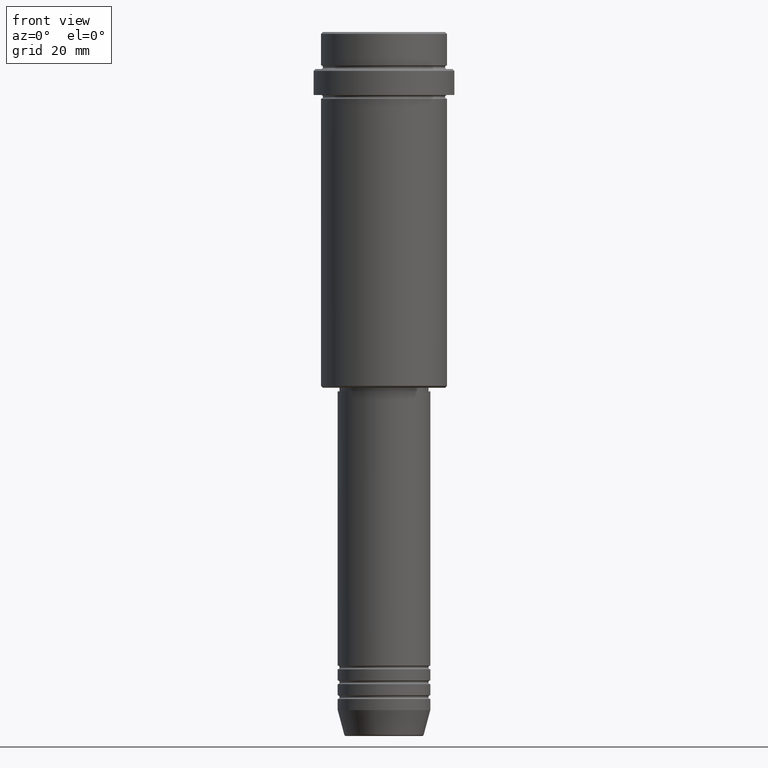
[diagram: clean part render]
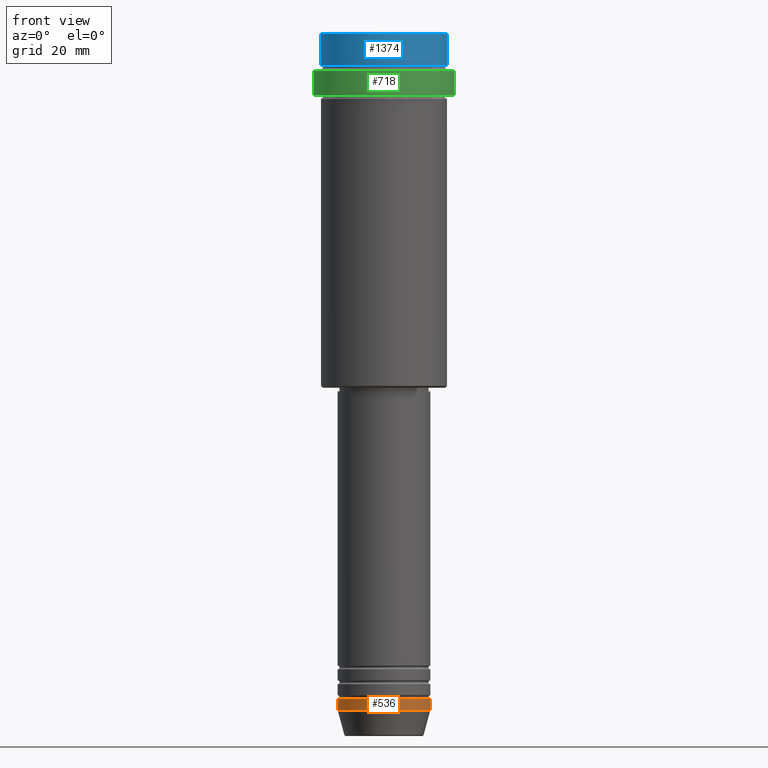
[diagram: same view with three faces highlighted in distinct colors, each labeled with its STEP entity id]
A machine part, front view with three faces highlighted in distinct colors.
Their STEP definitions:

[orange] entity #536 — the highlighted cylindrical surface (partial cylindrical patch) has radius 12.5 mm, axis along (-0, -0, 1).
#16 = DIRECTION ( 'NONE',  ( -0.000000000000000000, -0.000000000000000000, 1.000000000000000000 ) ) ;
#23 = CARTESIAN_POINT ( 'NONE',  ( 0.000000000000000000, 0.000000000000000000, -180.0000000000000000 ) ) ;
#49 = CARTESIAN_POINT ( 'NONE',  ( 0.000000000000000000, 0.000000000000000000, -183.0000000000000000 ) ) ;
#98 = CARTESIAN_POINT ( 'NONE',  ( -12.50000000000000000, 1.530808498934191521E-15, -180.0000000000000000 ) ) ;
#129 = CARTESIAN_POINT ( 'NONE',  ( 12.50000000000000000, 0.000000000000000000, -180.0000000000000000 ) ) ;
#139 = EDGE_CURVE ( 'NONE', #1248, #659, #251, .T. ) ;
#154 = DIRECTION ( 'NONE',  ( 1.000000000000000000, 0.000000000000000000, 0.000000000000000000 ) ) ;
#159 = VERTEX_POINT ( 'NONE', #129 ) ;
#164 = EDGE_CURVE ( 'NONE', #659, #159, #1139, .T. ) ;
#245 = DIRECTION ( 'NONE',  ( 1.000000000000000000, 0.000000000000000000, 0.000000000000000000 ) ) ;
#251 = LINE ( 'NONE', #705, #903 ) ;
#341 = AXIS2_PLACEMENT_3D ( 'NONE', #471, #1342, #1333 ) ;
#399 = ORIENTED_EDGE ( 'NONE', *, *, #164, .F. ) ;
#471 = CARTESIAN_POINT ( 'NONE',  ( 0.000000000000000000, 0.000000000000000000, 0.000000000000000000 ) ) ;
#507 = AXIS2_PLACEMENT_3D ( 'NONE', #23, #1239, #245 ) ;
#532 = ORIENTED_EDGE ( 'NONE', *, *, #1183, .T. ) ;
#536 = ADVANCED_FACE ( 'NONE', ( #1313 ), #1325, .T. ) ;
#612 = VERTEX_POINT ( 'NONE', #741 ) ;
#659 = VERTEX_POINT ( 'NONE', #98 ) ;
#681 = CIRCLE ( 'NONE', #1056, 12.50000000000000000 ) ;
#705 = CARTESIAN_POINT ( 'NONE',  ( -12.50000000000000000, 1.530808498934191521E-15, 0.000000000000000000 ) ) ;
#727 = VECTOR ( 'NONE', #1071, 1000.000000000000000 ) ;
#736 = ORIENTED_EDGE ( 'NONE', *, *, #890, .T. ) ;
#741 = CARTESIAN_POINT ( 'NONE',  ( 12.50000000000000000, 0.000000000000000000, -183.0000000000000000 ) ) ;
#798 = DIRECTION ( 'NONE',  ( -0.000000000000000000, -0.000000000000000000, 1.000000000000000000 ) ) ;
#890 = EDGE_CURVE ( 'NONE', #612, #159, #1178, .T. ) ;
#903 = VECTOR ( 'NONE', #16, 1000.000000000000000 ) ;
#1035 = CARTESIAN_POINT ( 'NONE',  ( -12.50000000000000000, 1.530808498934191521E-15, -183.0000000000000000 ) ) ;
#1056 = AXIS2_PLACEMENT_3D ( 'NONE', #49, #798, #154 ) ;
#1071 = DIRECTION ( 'NONE',  ( -0.000000000000000000, -0.000000000000000000, 1.000000000000000000 ) ) ;
#1131 = ORIENTED_EDGE ( 'NONE', *, *, #139, .F. ) ;
#1139 = CIRCLE ( 'NONE', #507, 12.50000000000000000 ) ;
#1178 = LINE ( 'NONE', #1277, #727 ) ;
#1183 = EDGE_CURVE ( 'NONE', #1248, #612, #681, .T. ) ;
#1239 = DIRECTION ( 'NONE',  ( -0.000000000000000000, -0.000000000000000000, 1.000000000000000000 ) ) ;
#1248 = VERTEX_POINT ( 'NONE', #1035 ) ;
#1265 = EDGE_LOOP ( 'NONE', ( #1131, #532, #736, #399 ) ) ;
#1277 = CARTESIAN_POINT ( 'NONE',  ( 12.50000000000000000, 0.000000000000000000, 0.000000000000000000 ) ) ;
#1313 = FACE_OUTER_BOUND ( 'NONE', #1265, .T. ) ;
#1325 = CYLINDRICAL_SURFACE ( 'NONE', #341, 12.50000000000000000 ) ;
#1333 = DIRECTION ( 'NONE',  ( 1.000000000000000000, 0.000000000000000000, 0.000000000000000000 ) ) ;
#1342 = DIRECTION ( 'NONE',  ( -0.000000000000000000, -0.000000000000000000, 1.000000000000000000 ) ) ;

[blue] entity #1374 — the highlighted cylindrical surface (partial cylindrical patch) has radius 17 mm, axis along (-0, -0, 1).
#70 = DIRECTION ( 'NONE',  ( 1.000000000000000000, 0.000000000000000000, 0.000000000000000000 ) ) ;
#90 = DIRECTION ( 'NONE',  ( 1.000000000000000000, 0.000000000000000000, 0.000000000000000000 ) ) ;
#125 = EDGE_LOOP ( 'NONE', ( #1355, #920, #761, #955 ) ) ;
#188 = CARTESIAN_POINT ( 'NONE',  ( -16.99999999999998934, 2.081899558550499491E-15, 0.000000000000000000 ) ) ;
#278 = DIRECTION ( 'NONE',  ( 1.000000000000000000, 0.000000000000000000, 0.000000000000000000 ) ) ;
#396 = DIRECTION ( 'NONE',  ( -0.000000000000000000, -0.000000000000000000, 1.000000000000000000 ) ) ;
#403 = CYLINDRICAL_SURFACE ( 'NONE', #1363, 16.99999999999998934 ) ;
#445 = EDGE_CURVE ( 'NONE', #490, #603, #675, .T. ) ;
#490 = VERTEX_POINT ( 'NONE', #775 ) ;
#524 = DIRECTION ( 'NONE',  ( -0.000000000000000000, -0.000000000000000000, 1.000000000000000000 ) ) ;
#537 = CARTESIAN_POINT ( 'NONE',  ( -16.99999999999997868, 2.081899558550498702E-15, -8.999999999999998224 ) ) ;
#600 = AXIS2_PLACEMENT_3D ( 'NONE', #825, #1261, #278 ) ;
#603 = VERTEX_POINT ( 'NONE', #1322 ) ;
#625 = VERTEX_POINT ( 'NONE', #537 ) ;
#640 = CARTESIAN_POINT ( 'NONE',  ( 0.000000000000000000, 0.000000000000000000, 0.000000000000000000 ) ) ;
#675 = CIRCLE ( 'NONE', #600, 16.99999999999998934 ) ;
#688 = VERTEX_POINT ( 'NONE', #779 ) ;
#699 = DIRECTION ( 'NONE',  ( -0.000000000000000000, -0.000000000000000000, 1.000000000000000000 ) ) ;
#750 = CIRCLE ( 'NONE', #792, 16.99999999999997868 ) ;
#761 = ORIENTED_EDGE ( 'NONE', *, *, #1189, .T. ) ;
#775 = CARTESIAN_POINT ( 'NONE',  ( 16.99999999999998934, 0.000000000000000000, -0.4999999999999865663 ) ) ;
#779 = CARTESIAN_POINT ( 'NONE',  ( 16.99999999999997868, 0.000000000000000000, -8.999999999999998224 ) ) ;
#792 = AXIS2_PLACEMENT_3D ( 'NONE', #1188, #1400, #70 ) ;
#825 = CARTESIAN_POINT ( 'NONE',  ( 0.000000000000000000, 0.000000000000000000, -0.4999999999999865663 ) ) ;
#920 = ORIENTED_EDGE ( 'NONE', *, *, #981, .T. ) ;
#952 = EDGE_CURVE ( 'NONE', #625, #603, #1067, .T. ) ;
#955 = ORIENTED_EDGE ( 'NONE', *, *, #445, .T. ) ;
#981 = EDGE_CURVE ( 'NONE', #625, #688, #750, .T. ) ;
#1041 = LINE ( 'NONE', #1154, #1100 ) ;
#1067 = LINE ( 'NONE', #188, #1312 ) ;
#1100 = VECTOR ( 'NONE', #699, 1000.000000000000000 ) ;
#1154 = CARTESIAN_POINT ( 'NONE',  ( 16.99999999999998934, 0.000000000000000000, 0.000000000000000000 ) ) ;
#1188 = CARTESIAN_POINT ( 'NONE',  ( 0.000000000000000000, 0.000000000000000000, -8.999999999999998224 ) ) ;
#1189 = EDGE_CURVE ( 'NONE', #688, #490, #1041, .T. ) ;
#1261 = DIRECTION ( 'NONE',  ( 0.000000000000000000, 0.000000000000000000, -1.000000000000000000 ) ) ;
#1312 = VECTOR ( 'NONE', #396, 1000.000000000000000 ) ;
#1322 = CARTESIAN_POINT ( 'NONE',  ( -16.99999999999998934, 2.081899558550499491E-15, -0.4999999999999865663 ) ) ;
#1355 = ORIENTED_EDGE ( 'NONE', *, *, #952, .F. ) ;
#1363 = AXIS2_PLACEMENT_3D ( 'NONE', #640, #524, #90 ) ;
#1374 = ADVANCED_FACE ( 'NONE', ( #1413 ), #403, .T. ) ;
#1400 = DIRECTION ( 'NONE',  ( -0.000000000000000000, -0.000000000000000000, 1.000000000000000000 ) ) ;
#1413 = FACE_OUTER_BOUND ( 'NONE', #125, .T. ) ;

[green] entity #718 — the highlighted cylindrical surface (partial cylindrical patch) has radius 19 mm, axis along (-0, -0, 1).
#15 = CARTESIAN_POINT ( 'NONE',  ( 0.000000000000000000, 0.000000000000000000, 0.000000000000000000 ) ) ;
#27 = CARTESIAN_POINT ( 'NONE',  ( 0.000000000000000000, 0.000000000000000000, -10.49999999999998934 ) ) ;
#60 = DIRECTION ( 'NONE',  ( -0.000000000000000000, -0.000000000000000000, 1.000000000000000000 ) ) ;
#104 = DIRECTION ( 'NONE',  ( 1.000000000000000000, 0.000000000000000000, 0.000000000000000000 ) ) ;
#134 = CARTESIAN_POINT ( 'NONE',  ( -18.99999999999997868, 2.326828918379968604E-15, 0.000000000000000000 ) ) ;
#227 = ORIENTED_EDGE ( 'NONE', *, *, #802, .T. ) ;
#240 = DIRECTION ( 'NONE',  ( -0.000000000000000000, -0.000000000000000000, 1.000000000000000000 ) ) ;
#288 = VERTEX_POINT ( 'NONE', #1338 ) ;
#412 = AXIS2_PLACEMENT_3D ( 'NONE', #1299, #670, #104 ) ;
#449 = DIRECTION ( 'NONE',  ( 1.000000000000000000, 0.000000000000000000, 0.000000000000000000 ) ) ;
#480 = EDGE_CURVE ( 'NONE', #895, #692, #691, .T. ) ;
#496 = ORIENTED_EDGE ( 'NONE', *, *, #480, .T. ) ;
#558 = FACE_OUTER_BOUND ( 'NONE', #1190, .T. ) ;
#578 = LINE ( 'NONE', #134, #1290 ) ;
#670 = DIRECTION ( 'NONE',  ( -0.000000000000000000, -0.000000000000000000, 1.000000000000000000 ) ) ;
#689 = DIRECTION ( 'NONE',  ( 1.000000000000000000, 0.000000000000000000, 0.000000000000000000 ) ) ;
#691 = LINE ( 'NONE', #1000, #974 ) ;
#692 = VERTEX_POINT ( 'NONE', #1321 ) ;
#718 = ADVANCED_FACE ( 'NONE', ( #558 ), #1008, .T. ) ;
#744 = CARTESIAN_POINT ( 'NONE',  ( 18.99999999999997868, 0.000000000000000000, -17.00000000000000000 ) ) ;
#759 = EDGE_CURVE ( 'NONE', #288, #902, #578, .T. ) ;
#776 = ORIENTED_EDGE ( 'NONE', *, *, #759, .F. ) ;
#780 = ORIENTED_EDGE ( 'NONE', *, *, #1060, .T. ) ;
#802 = EDGE_CURVE ( 'NONE', #692, #902, #815, .T. ) ;
#815 = CIRCLE ( 'NONE', #1118, 18.99999999999997868 ) ;
#895 = VERTEX_POINT ( 'NONE', #744 ) ;
#902 = VERTEX_POINT ( 'NONE', #1381 ) ;
#908 = DIRECTION ( 'NONE',  ( 0.000000000000000000, 0.000000000000000000, -1.000000000000000000 ) ) ;
#974 = VECTOR ( 'NONE', #240, 1000.000000000000000 ) ;
#990 = DIRECTION ( 'NONE',  ( -0.000000000000000000, -0.000000000000000000, 1.000000000000000000 ) ) ;
#1000 = CARTESIAN_POINT ( 'NONE',  ( 18.99999999999997868, 0.000000000000000000, 0.000000000000000000 ) ) ;
#1008 = CYLINDRICAL_SURFACE ( 'NONE', #1382, 18.99999999999997868 ) ;
#1060 = EDGE_CURVE ( 'NONE', #288, #895, #1203, .T. ) ;
#1118 = AXIS2_PLACEMENT_3D ( 'NONE', #27, #908, #689 ) ;
#1190 = EDGE_LOOP ( 'NONE', ( #776, #780, #496, #227 ) ) ;
#1203 = CIRCLE ( 'NONE', #412, 18.99999999999997868 ) ;
#1290 = VECTOR ( 'NONE', #60, 1000.000000000000000 ) ;
#1299 = CARTESIAN_POINT ( 'NONE',  ( 0.000000000000000000, 0.000000000000000000, -17.00000000000000000 ) ) ;
#1321 = CARTESIAN_POINT ( 'NONE',  ( 18.99999999999997868, 0.000000000000000000, -10.49999999999998934 ) ) ;
#1338 = CARTESIAN_POINT ( 'NONE',  ( -18.99999999999997868, 2.326828918379968604E-15, -17.00000000000000000 ) ) ;
#1381 = CARTESIAN_POINT ( 'NONE',  ( -18.99999999999997868, 2.326828918379968604E-15, -10.49999999999998934 ) ) ;
#1382 = AXIS2_PLACEMENT_3D ( 'NONE', #15, #990, #449 ) ;